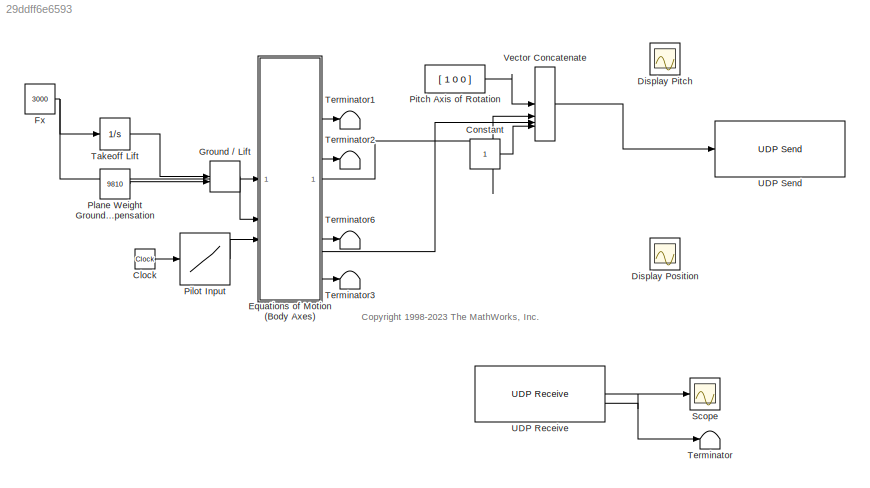
MODEL slx_29ddff6e6593
KIND model
CONFIG AbsTol = auto
CONFIG EnableMultiTasking = on
CONFIG FixedStep = auto
CONFIG MaxStep = auto
CONFIG MinStep = auto
CONFIG RelTol = 1e-3
CONFIG SampleTimeConstraint = Unconstrained
CONFIG SolverName = FixedStepAuto
CONFIG StartTime = 0.0
CONFIG StopTime = 15
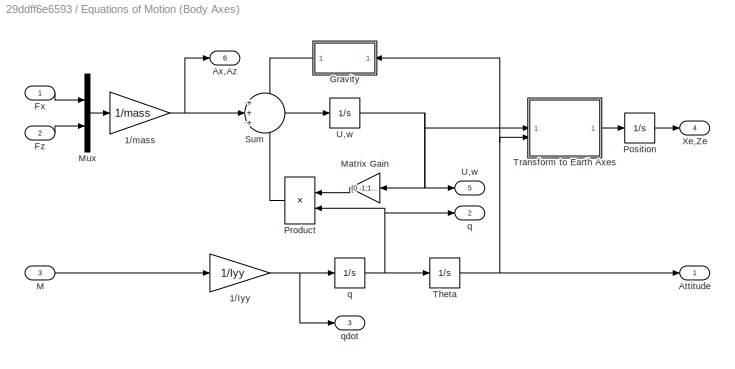
BLOCK [SubSystem]  Equations of Motion (Body Axes)
  LibrarySourceBlock = aerospace/3DoF\nEquations\nof\nMotion / Equations of Motion\n(Body Axes)
BLOCK [Gain]  Equations of Motion (Body Axes)/1//Iyy
  Gain = 1/Iyy
  OutDataTypeStr = Inherit: Same as input
  ParamDataTypeStr = Inherit: Same as input
  SaturateOnIntegerOverflow = on
BLOCK [Gain]  Equations of Motion (Body Axes)/1//mass
  Gain = 1/mass
  OutDataTypeStr = Inherit: Same as input
  ParamDataTypeStr = Inherit: Same as input
  SaturateOnIntegerOverflow = on
BLOCK [Outport]  Equations of Motion (Body Axes)/Attitude
  InitialOutput = 0
  VectorParamsAs1DForOutWhenUnconnected = off
BLOCK [Outport]  Equations of Motion (Body Axes)/Ax,Az
  InitialOutput = 0
  Port = 6
  VectorParamsAs1DForOutWhenUnconnected = off
BLOCK [Inport]  Equations of Motion (Body Axes)/Fx
BLOCK [Inport]  Equations of Motion (Body Axes)/Fz
  Port = 2
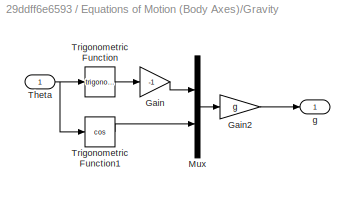
BLOCK [SubSystem]  Equations of Motion (Body Axes)/Gravity
BLOCK [Gain]  Equations of Motion (Body Axes)/Gravity/Gain
  Gain = -1
  NameLocation = top
  OutDataTypeStr = Inherit: Same as input
  ParamDataTypeStr = Inherit: Same as input
  SaturateOnIntegerOverflow = on
BLOCK [Gain]  Equations of Motion (Body Axes)/Gravity/Gain2
  Gain = g
  NameLocation = top
  OutDataTypeStr = Inherit: Same as input
  ParamDataTypeStr = Inherit: Same as input
  SaturateOnIntegerOverflow = on
BLOCK [Mux]  Equations of Motion (Body Axes)/Gravity/Mux
  DisplayOption = bar
  Inputs = 2
BLOCK [Inport]  Equations of Motion (Body Axes)/Gravity/Theta
BLOCK [Trigonometry]  Equations of Motion (Body Axes)/Gravity/Trigonometric Function
BLOCK [Trigonometry]  Equations of Motion (Body Axes)/Gravity/Trigonometric Function1
  Operator = cos
BLOCK [Outport]  Equations of Motion (Body Axes)/Gravity/g
  VectorParamsAs1DForOutWhenUnconnected = off
BLOCK [Inport]  Equations of Motion (Body Axes)/M
  Port = 3
BLOCK [Gain]  Equations of Motion (Body Axes)/Matrix Gain
  Gain = [0 -1;1 0]
  Multiplication = Matrix(K*u)
  OutDataTypeStr = Inherit: Same as input
  ParamDataTypeStr = Inherit: Same as input
  SaturateOnIntegerOverflow = on
BLOCK [Mux]  Equations of Motion (Body Axes)/Mux
  DisplayOption = bar
  Inputs = 2
BLOCK [Integrator]  Equations of Motion (Body Axes)/Position
  InitialCondition = pos_ini
BLOCK [Product]  Equations of Motion (Body Axes)/Product
  InputSameDT = on
  OutDataTypeStr = Inherit: Same as first input
  RndMeth = Zero
  SaturateOnIntegerOverflow = on
BLOCK [Sum]  Equations of Motion (Body Axes)/Sum
  InputSameDT = on
  Inputs = +++
  OutDataTypeStr = Inherit: Same as first input
  SaturateOnIntegerOverflow = on
BLOCK [Integrator]  Equations of Motion (Body Axes)/Theta
  InitialCondition = theta_ini
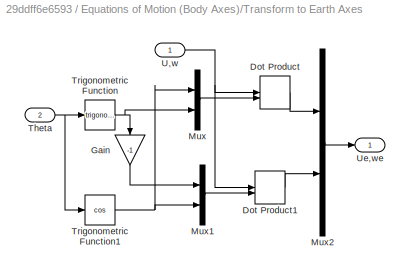
BLOCK [SubSystem]  Equations of Motion (Body Axes)/Transform to Earth Axes
BLOCK [DotProduct]  Equations of Motion (Body Axes)/Transform to Earth Axes/Dot Product
  OutDataTypeStr = Inherit: Inherit via internal rule
BLOCK [DotProduct]  Equations of Motion (Body Axes)/Transform to Earth Axes/Dot Product1
  OutDataTypeStr = Inherit: Inherit via internal rule
BLOCK [Gain]  Equations of Motion (Body Axes)/Transform to Earth Axes/Gain
  Gain = -1
  NameLocation = left
  OutDataTypeStr = Inherit: Same as input
  ParamDataTypeStr = Inherit: Same as input
  SaturateOnIntegerOverflow = on
BLOCK [Mux]  Equations of Motion (Body Axes)/Transform to Earth Axes/Mux
  DisplayOption = bar
  Inputs = 2
BLOCK [Mux]  Equations of Motion (Body Axes)/Transform to Earth Axes/Mux1
  DisplayOption = bar
  Inputs = 2
BLOCK [Mux]  Equations of Motion (Body Axes)/Transform to Earth Axes/Mux2
  DisplayOption = bar
  Inputs = 2
BLOCK [Inport]  Equations of Motion (Body Axes)/Transform to Earth Axes/Theta
  Port = 2
BLOCK [Trigonometry]  Equations of Motion (Body Axes)/Transform to Earth Axes/Trigonometric Function
BLOCK [Trigonometry]  Equations of Motion (Body Axes)/Transform to Earth Axes/Trigonometric Function1
  Operator = cos
BLOCK [Inport]  Equations of Motion (Body Axes)/Transform to Earth Axes/U,w
BLOCK [Outport]  Equations of Motion (Body Axes)/Transform to Earth Axes/Ue,we
  VectorParamsAs1DForOutWhenUnconnected = off
BLOCK [Integrator]  Equations of Motion (Body Axes)/U,w
  InitialCondition = [U0 w0]
BLOCK [Outport]  Equations of Motion (Body Axes)/U,w 
  InitialOutput = 0
  NameLocation = top
  Port = 5
  VectorParamsAs1DForOutWhenUnconnected = off
BLOCK [Outport]  Equations of Motion (Body Axes)/Xe,Ze
  InitialOutput = 0
  Port = 4
  VectorParamsAs1DForOutWhenUnconnected = off
BLOCK [Integrator]  Equations of Motion (Body Axes)/q
  InitialCondition = q_ini
BLOCK [Outport]  Equations of Motion (Body Axes)/q 
  InitialOutput = 0
  Port = 2
  VectorParamsAs1DForOutWhenUnconnected = off
BLOCK [Outport]  Equations of Motion (Body Axes)/qdot
  InitialOutput = 0
  Port = 3
  VectorParamsAs1DForOutWhenUnconnected = off
BLOCK [Clock] Clock
BLOCK [Constant] Constant
BLOCK [Scope] Display Pitch
  Commented = on
  Floating = off
  NumInputPorts = 1
  ScopeSpecificationString = Simulink.scopes.TimeScopeBlockCfg('CurrentConfiguration', extmgr.ConfigurationSet(extmgr.Configuration('Core','General UI',true),extmgr.Configuration('Core','Source UI',true),extmgr.Configuration('Sources','WiredSimulink',true,'DataLoggingVariableName','ScopeData1','DataLoggingSaveFormat','StructureWithTime','DataLoggingLimitDataPoints',true,'DataLoggingDecimation','1'),extmgr.Configuration('Visua...<+1706ch>
BLOCK [Scope] Display Position
  Commented = on
  Floating = off
  NumInputPorts = 1
  ScopeSpecificationString = Simulink.scopes.TimeScopeBlockCfg('CurrentConfiguration', extmgr.ConfigurationSet(extmgr.Configuration('Core','General UI',true),extmgr.Configuration('Core','Source UI',true),extmgr.Configuration('Sources','WiredSimulink',true,'DataLoggingSaveFormat','StructureWithTime','DataLoggingLimitDataPoints',true,'DataLoggingDecimation','1'),extmgr.Configuration('Visuals','Time Domain',true,'SerializedDispl...<+1739ch>
BLOCK [Constant] Fx
  Value = 3000
BLOCK [MinMax] Ground // Lift
  Function = max
  InputSameDT = on
  Inputs = 2
  SaturateOnIntegerOverflow = on
BLOCK [Lookup] Pilot Input
  InputValues = [0 1 2 8 9 15]
  Table = [0 0 -20 20 0 0]
BLOCK [Constant] Pitch Axis of Rotation
  Value = [ 1 0 0 ]
BLOCK [Constant] Plane Weight Ground Compensation
  Value = 9810
BLOCK [Scope] Scope
  Floating = off
  NumInputPorts = 1
  ScopeSpecificationString = Simulink.scopes.TimeScopeBlockCfg('CurrentConfiguration', extmgr.ConfigurationSet(extmgr.Configuration('Core','General UI',true),extmgr.Configuration('Core','Source UI',true),extmgr.Configuration('Sources','WiredSimulink',true,'DataLoggingVariableName','ScopeData1','DataLoggingSaveFormat','Array','DataLoggingLimitDataPoints',true,'DataLoggingDecimation','1'),extmgr.Configuration('Visuals','Time Do...<+1854ch>
BLOCK [Integrator] Takeoff Lift
  LimitOutput = on
  LowerSaturationLimit = -Inf
  UpperSaturationLimit = 11000
BLOCK [Terminator] Terminator
BLOCK [Terminator] Terminator1
BLOCK [Terminator] Terminator2
BLOCK [Terminator] Terminator3
BLOCK [Terminator] Terminator6
BLOCK [Reference] UDP Receive  REF=instrumentlib/UDP Receive
  SourceBlock = instrumentlib/UDP Receive
  SourceType = instrument.system.UDPReceive
BLOCK [Reference] UDP Send  REF=instrumentlib/UDP Send
  SourceBlock = instrumentlib/UDP Send
  SourceType = instrument.system.UDPSend
BLOCK [Concatenate] Vector Concatenate
  NumInputs = 4
ANNOTATION (root): <copyright redacted>
NET  Equations of Motion (Body Axes)/1//Iyy:1 ->  Equations of Motion (Body Axes)/q:1,  Equations of Motion (Body Axes)/qdot:1
NET  Equations of Motion (Body Axes)/1//mass:1 ->  Equations of Motion (Body Axes)/Ax,Az:1,  Equations of Motion (Body Axes)/Sum:2
LINE  Equations of Motion (Body Axes)/Fx:1 ->  Equations of Motion (Body Axes)/Mux:1
LINE  Equations of Motion (Body Axes)/Fz:1 ->  Equations of Motion (Body Axes)/Mux:2
LINE  Equations of Motion (Body Axes)/Gravity/Gain2:1 ->  Equations of Motion (Body Axes)/Gravity/g:1
LINE  Equations of Motion (Body Axes)/Gravity/Gain:1 ->  Equations of Motion (Body Axes)/Gravity/Mux:1
LINE  Equations of Motion (Body Axes)/Gravity/Mux:1 ->  Equations of Motion (Body Axes)/Gravity/Gain2:1
NET  Equations of Motion (Body Axes)/Gravity/Theta:1 ->  Equations of Motion (Body Axes)/Gravity/Trigonometric Function1:1,  Equations of Motion (Body Axes)/Gravity/Trigonometric Function:1
LINE  Equations of Motion (Body Axes)/Gravity/Trigonometric Function1:1 ->  Equations of Motion (Body Axes)/Gravity/Mux:2
LINE  Equations of Motion (Body Axes)/Gravity/Trigonometric Function:1 ->  Equations of Motion (Body Axes)/Gravity/Gain:1
LINE  Equations of Motion (Body Axes)/Gravity:1 ->  Equations of Motion (Body Axes)/Sum:1
LINE  Equations of Motion (Body Axes)/M:1 ->  Equations of Motion (Body Axes)/1//Iyy:1
LINE  Equations of Motion (Body Axes)/Matrix Gain:1 ->  Equations of Motion (Body Axes)/Product:1
LINE  Equations of Motion (Body Axes)/Mux:1 ->  Equations of Motion (Body Axes)/1//mass:1
LINE  Equations of Motion (Body Axes)/Position:1 ->  Equations of Motion (Body Axes)/Xe,Ze:1
LINE  Equations of Motion (Body Axes)/Product:1 ->  Equations of Motion (Body Axes)/Sum:3
LINE  Equations of Motion (Body Axes)/Sum:1 ->  Equations of Motion (Body Axes)/U,w:1
NET  Equations of Motion (Body Axes)/Theta:1 ->  Equations of Motion (Body Axes)/Attitude:1,  Equations of Motion (Body Axes)/Gravity:1,  Equations of Motion (Body Axes)/Transform to Earth Axes:2
LINE  Equations of Motion (Body Axes)/Transform to Earth Axes/Dot Product1:1 ->  Equations of Motion (Body Axes)/Transform to Earth Axes/Mux2:2
LINE  Equations of Motion (Body Axes)/Transform to Earth Axes/Dot Product:1 ->  Equations of Motion (Body Axes)/Transform to Earth Axes/Mux2:1
LINE  Equations of Motion (Body Axes)/Transform to Earth Axes/Gain:1 ->  Equations of Motion (Body Axes)/Transform to Earth Axes/Mux1:1
LINE  Equations of Motion (Body Axes)/Transform to Earth Axes/Mux1:1 ->  Equations of Motion (Body Axes)/Transform to Earth Axes/Dot Product1:2
LINE  Equations of Motion (Body Axes)/Transform to Earth Axes/Mux2:1 ->  Equations of Motion (Body Axes)/Transform to Earth Axes/Ue,we:1
LINE  Equations of Motion (Body Axes)/Transform to Earth Axes/Mux:1 ->  Equations of Motion (Body Axes)/Transform to Earth Axes/Dot Product:2
NET  Equations of Motion (Body Axes)/Transform to Earth Axes/Theta:1 ->  Equations of Motion (Body Axes)/Transform to Earth Axes/Trigonometric Function1:1,  Equations of Motion (Body Axes)/Transform to Earth Axes/Trigonometric Function:1
NET  Equations of Motion (Body Axes)/Transform to Earth Axes/Trigonometric Function1:1 ->  Equations of Motion (Body Axes)/Transform to Earth Axes/Mux1:2,  Equations of Motion (Body Axes)/Transform to Earth Axes/Mux:1
NET  Equations of Motion (Body Axes)/Transform to Earth Axes/Trigonometric Function:1 ->  Equations of Motion (Body Axes)/Transform to Earth Axes/Gain:1,  Equations of Motion (Body Axes)/Transform to Earth Axes/Mux:2
NET  Equations of Motion (Body Axes)/Transform to Earth Axes/U,w:1 ->  Equations of Motion (Body Axes)/Transform to Earth Axes/Dot Product1:1,  Equations of Motion (Body Axes)/Transform to Earth Axes/Dot Product:1
LINE  Equations of Motion (Body Axes)/Transform to Earth Axes:1 ->  Equations of Motion (Body Axes)/Position:1
NET  Equations of Motion (Body Axes)/U,w:1 ->  Equations of Motion (Body Axes)/Matrix Gain:1,  Equations of Motion (Body Axes)/Transform to Earth Axes:1,  Equations of Motion (Body Axes)/U,w :1
NET  Equations of Motion (Body Axes)/q:1 ->  Equations of Motion (Body Axes)/Product:2,  Equations of Motion (Body Axes)/Theta:1,  Equations of Motion (Body Axes)/q :1
LINE  Equations of Motion (Body Axes):1 -> Vector Concatenate:2
LINE  Equations of Motion (Body Axes):2 -> Terminator1:1
LINE  Equations of Motion (Body Axes):3 -> Terminator2:1
LINE  Equations of Motion (Body Axes):4 -> Vector Concatenate:3
LINE  Equations of Motion (Body Axes):5 -> Terminator6:1
LINE  Equations of Motion (Body Axes):6 -> Terminator3:1
LINE Clock:1 -> Pilot Input:1
LINE Constant:1 -> Vector Concatenate:4
NET Fx:1 ->  Equations of Motion (Body Axes):1, Takeoff Lift:1
LINE Ground // Lift:1 ->  Equations of Motion (Body Axes):2
LINE Pilot Input:1 ->  Equations of Motion (Body Axes):3
LINE Pitch Axis of Rotation:1 -> Vector Concatenate:1
LINE Plane Weight Ground Compensation:1 -> Ground // Lift:2
LINE Takeoff Lift:1 -> Ground // Lift:1
LINE UDP Receive:1 -> Scope:1
LINE UDP Receive:2 -> Terminator:1
LINE Vector Concatenate:1 -> UDP Send:1
note: NET lines group one-source signal fan-out (src -> all destinations, sorted); 1:1 wires keep LINE
